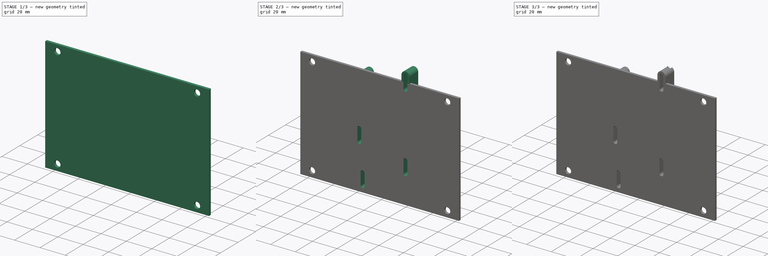
[diagram: build sequence overview — one tinted view per stage of 3, left to right]
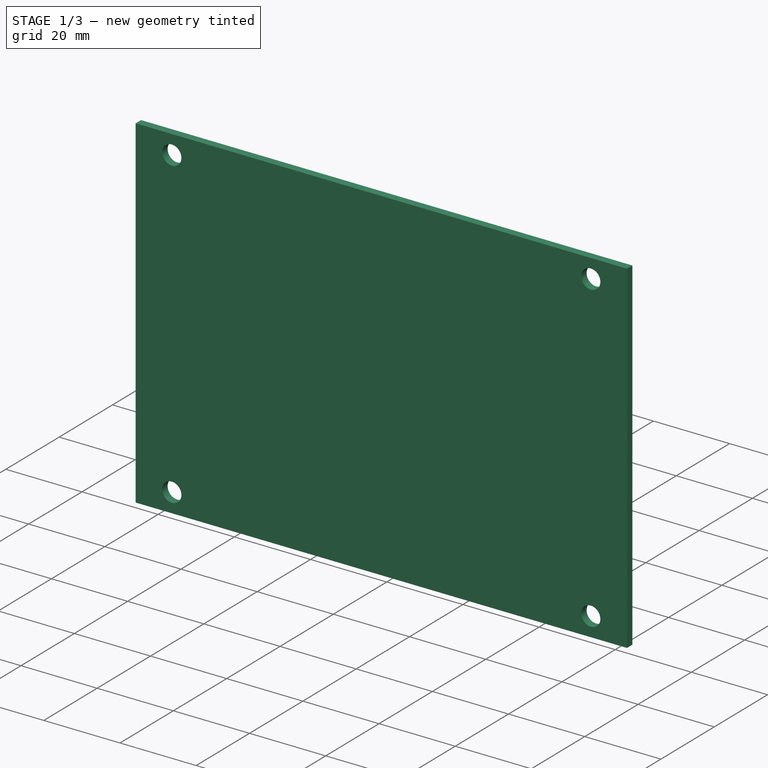
[diagram: stage 1 of 3 — iso view after this stage's code; geometry added in this stage tinted green]
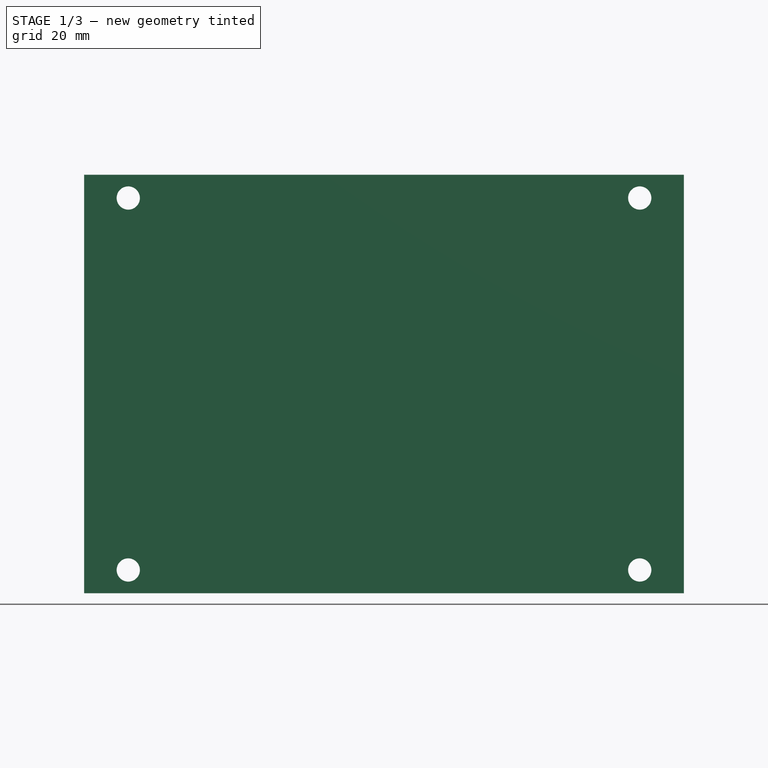
[diagram: stage 1 of 3 — front view after this stage's code; geometry added in this stage tinted green]
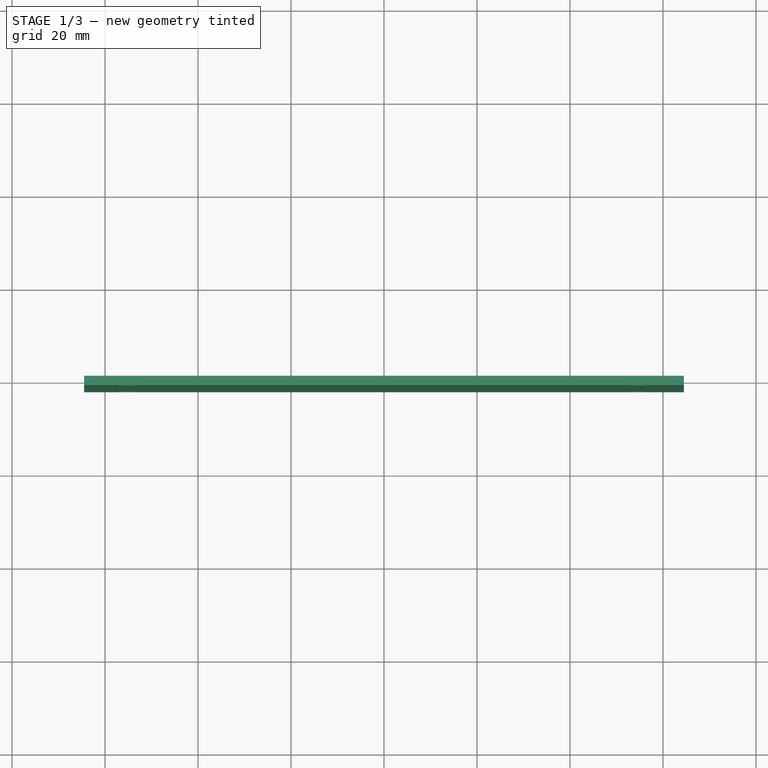
[diagram: stage 1 of 3 — top view after this stage's code; geometry added in this stage tinted green]
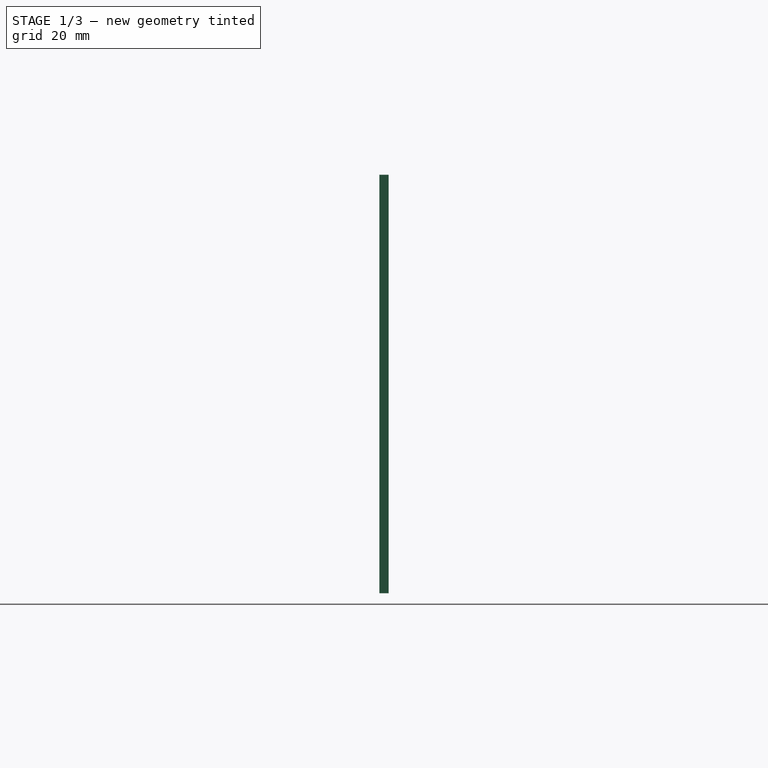
[diagram: stage 1 of 3 — right view after this stage's code; geometry added in this stage tinted green]
FCSTD DOCUMENT  (FreeCAD 0.20R29177 (Git))
Label: MK5Kit-Ender3BoardMount SideAccess
License: All rights reserved
LicenseURL: http://en.wikipedia.org/wiki/All_rights_reserved
objects: Sketcher::SketchObject×6, PartDesign::Pocket×5, PartDesign::Pad×2, PartDesign::Body×1
note: 21 computed .brp shape members not serialized (recipe doc carries the construction recipe); baked Part::Feature solids carry a one-line shape summary decoded from their .brp

FEATURE [Sketcher::SketchObject] Sketch
  FullyConstrained = true
  MapMode = 5
  Placement = pos=(0,0,0) rot=(1,0,0;1.5708rad)
  Support = -> [XZ_Plane]
  sketch-geometry (5):
    g0: LineSegment StartX=64.5 StartY=-45 StartZ=0 EndX=64.5 EndY=45 EndZ=0
    g1: LineSegment StartX=64.5 StartY=45 StartZ=0 EndX=-64.5 EndY=45 EndZ=0
    g2: LineSegment StartX=-64.5 StartY=45 StartZ=0 EndX=-64.5 EndY=-45 EndZ=0
    g3: LineSegment StartX=-64.5 StartY=-45 StartZ=0 EndX=64.5 EndY=-45 EndZ=0
    g4: GeomPoint X=0 Y=0 Z=0
  constraints (12):
    c: Coincident(g0,g1)
    c: Coincident(g1,g2)
    c: Coincident(g2,g3)
    c: Coincident(g3,g0)
    c: Horizontal(g1)
    c: Horizontal(g3)
    c: Vertical(g0)
    c: Vertical(g2)
    c: Symmetric(g1,g0,g4)
    c: Coincident(g4,g-1)
    c: DistanceX(g1,g1) = 129
    c: DistanceY(g2,g2) = 90
FEATURE [PartDesign::Pad] Pad
  Direction = (0,-1,2e-16)
  Length = 2
  Length2 = 10
  Placement = pos=(0,0,0) rot=(1,0,0;1.5708rad)
  Profile = -> Sketch
  ReferenceAxis = -> Sketch [N_Axis]
  Type = 0
FEATURE [Sketcher::SketchObject] Sketch001
  FullyConstrained = false
  MapMode = 5
  Placement = pos=(0,0,0) rot=(1,0,0;1.5708rad)
  Support = -> [XZ_Plane]
  sketch-geometry (4):
    g0: Circle CenterX=55 CenterY=40 CenterZ=0 NormalX=0 NormalY=0 NormalZ=1 AngleXU=0 Radius=2.5
    g1: Circle CenterX=-55 CenterY=40 CenterZ=0 NormalX=0 NormalY=0 NormalZ=1 AngleXU=0 Radius=2.5
    g2: Circle CenterX=55 CenterY=-40 CenterZ=0 NormalX=0 NormalY=0 NormalZ=1 AngleXU=0 Radius=2.5
    g3: Circle CenterX=-55 CenterY=-40 CenterZ=0 NormalX=0 NormalY=0 NormalZ=1 AngleXU=0 Radius=2.5
  constraints (6):
    c: Diameter(g0) = 5
    c: DistanceX(g-1,g0) = 55
    c: DistanceY(g-1,g0) = 40
    c: Diameter(g1) = 5
    c: Diameter(g2) = 5
    c: Diameter(g3) = 5
FEATURE [PartDesign::Pocket] Pocket
  BaseFeature = -> Pad
  Direction = (0,1,-2e-16)
  Length = 11
  Length2 = 2
  Placement = pos=(0,0,0) rot=(1,0,0;1.5708rad)
  Profile = -> Sketch001
  ReferenceAxis = -> Sketch001 [N_Axis]
  Reversed = true
  Type = 1
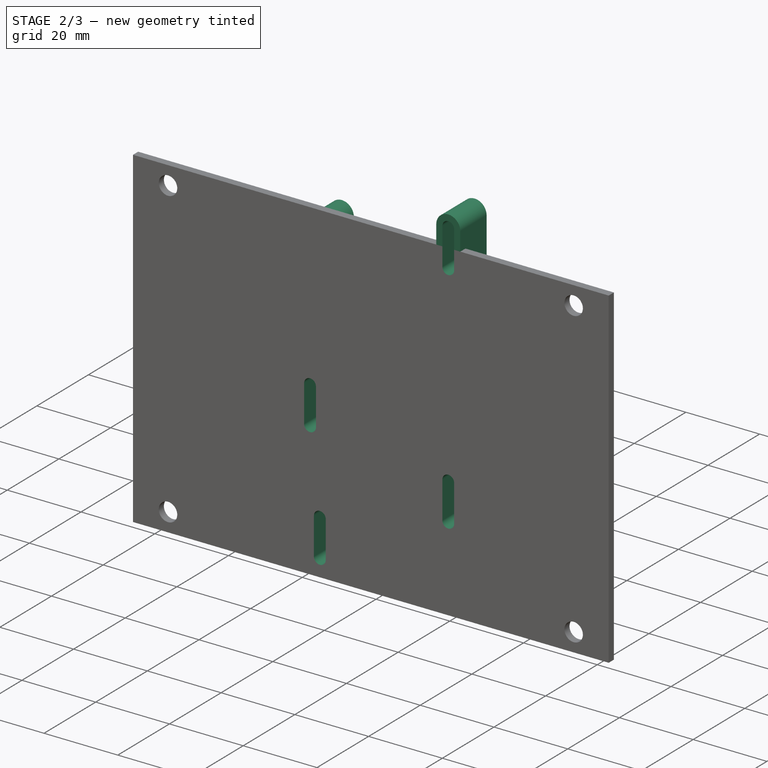
[diagram: stage 2 of 3 — iso view after this stage's code; geometry added in this stage tinted green]
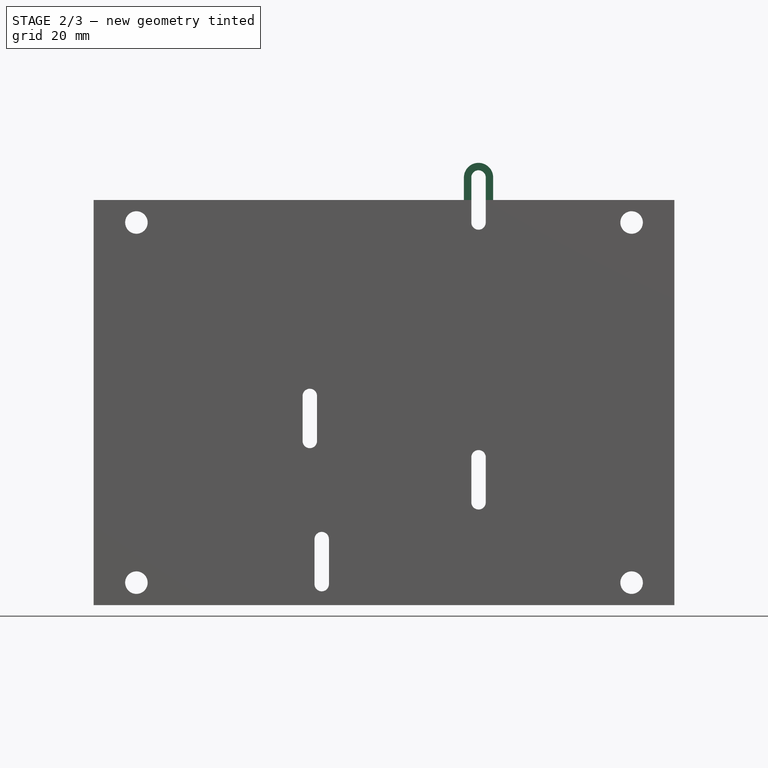
[diagram: stage 2 of 3 — front view after this stage's code; geometry added in this stage tinted green]
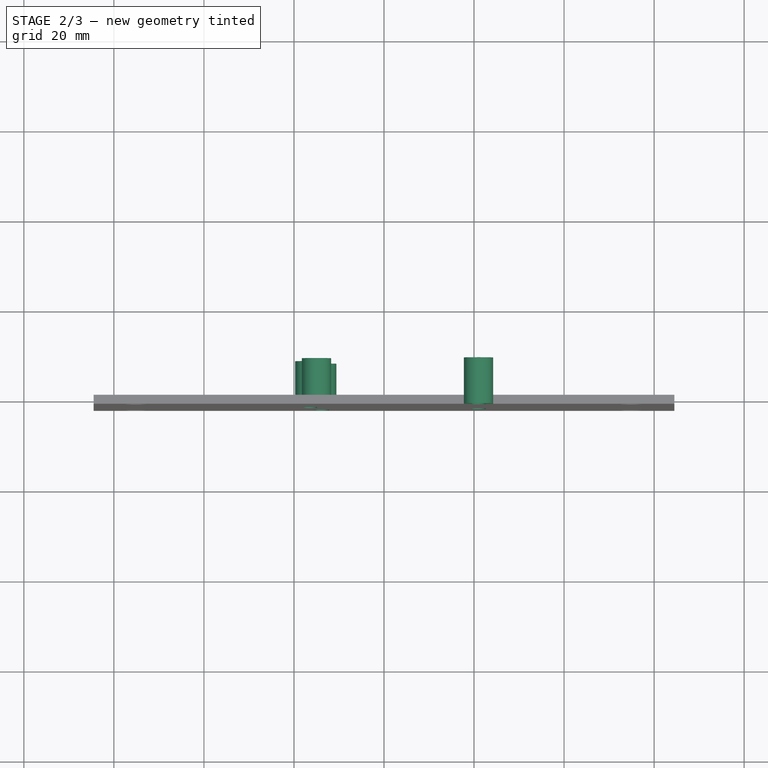
[diagram: stage 2 of 3 — top view after this stage's code; geometry added in this stage tinted green]
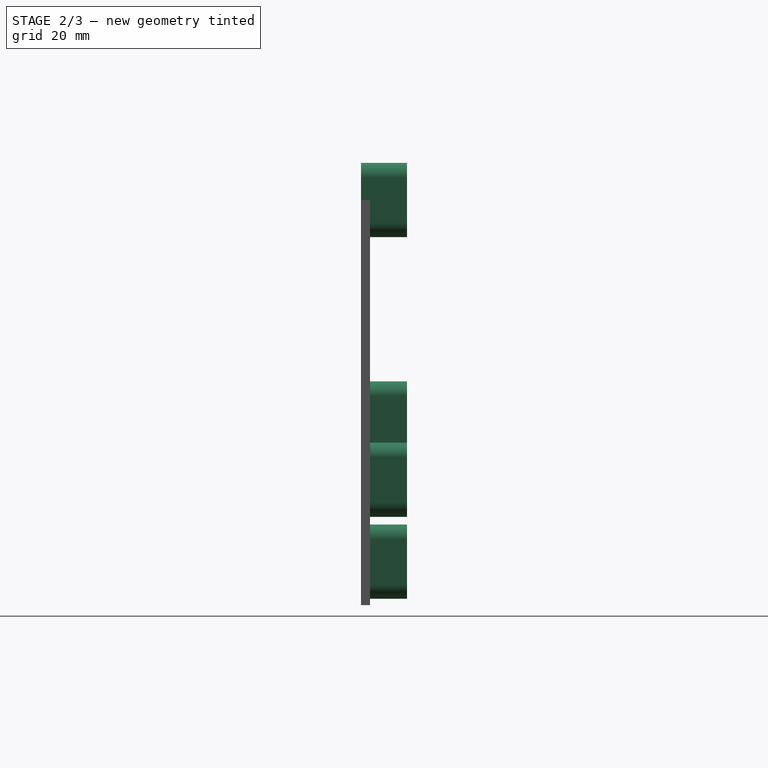
[diagram: stage 2 of 3 — right view after this stage's code; geometry added in this stage tinted green]
FEATURE [Sketcher::SketchObject] Sketch002
  ExternalGeometry = -> [Pocket]
  FullyConstrained = false
  MapMode = 5
  Placement = pos=(0,0,0) rot=(1,0,0;1.5708rad)
  Support = -> [XZ_Plane]
  sketch-geometry (4):
    g0: Circle CenterX=55 CenterY=40 CenterZ=0 NormalX=0 NormalY=0 NormalZ=1 AngleXU=0 Radius=4.375
    g1: Circle CenterX=-55 CenterY=40 CenterZ=0 NormalX=0 NormalY=0 NormalZ=1 AngleXU=0 Radius=4.375
    g2: Circle CenterX=55 CenterY=-40 CenterZ=0 NormalX=0 NormalY=0 NormalZ=1 AngleXU=0 Radius=4.375
    g3: Circle CenterX=-55 CenterY=-40 CenterZ=0 NormalX=0 NormalY=0 NormalZ=1 AngleXU=0 Radius=4.375
  constraints (5):
    c: Coincident(g0,g-3)
    c: Diameter(g0) = 8.75
    c: Diameter(g1) = 8.75
    c: Diameter(g2) = 8.75
    c: Diameter(g3) = 8.75
FEATURE [PartDesign::Pocket] Pocket001
  BaseFeature = -> Pocket
  Direction = (0,1,-2e-16)
  Length = 0.02
  Length2 = 5
  Placement = pos=(0,0,0) rot=(1,0,0;1.5708rad)
  Profile = -> Sketch002
  ReferenceAxis = -> Sketch002 [N_Axis]
  Reversed = true
  Type = 0
FEATURE [Sketcher::SketchObject] Sketch003
  ExternalGeometry = -> [Sketch001,Pocket001]
  FullyConstrained = false
  MapMode = 5
  Placement = pos=(0,0,0) rot=(1,0,0;1.5708rad)
  Support = -> [XZ_Plane]
  sketch-geometry (18):
    g0: ArcOfCircle CenterX=21 CenterY=50 CenterZ=0 NormalX=0 NormalY=0 NormalZ=1 AngleXU=0 Radius=3.25 StartAngle=1.94e-14 EndAngle=3.14159
    g1: ArcOfCircle CenterX=21 CenterY=40 CenterZ=0 NormalX=0 NormalY=0 NormalZ=1 AngleXU=0 Radius=3.25 StartAngle=3.14159 EndAngle=6.28319
    g2: LineSegment StartX=17.75 StartY=50 StartZ=0 EndX=17.75 EndY=40 EndZ=0
    g3: LineSegment StartX=24.25 StartY=40 StartZ=0 EndX=24.25 EndY=50 EndZ=0
    g4: ArcOfCircle CenterX=-16.48 CenterY=1.47 CenterZ=0 NormalX=0 NormalY=0 NormalZ=1 AngleXU=0 Radius=3.25 StartAngle=0 EndAngle=3.14159
    g5: ArcOfCircle CenterX=-16.48 CenterY=-8.53 CenterZ=0 NormalX=0 NormalY=0 NormalZ=1 AngleXU=0 Radius=3.25 StartAngle=3.14159 EndAngle=6.28319
    g6: LineSegment StartX=-19.73 StartY=1.47 StartZ=0 EndX=-19.73 EndY=-8.53 EndZ=0
    g7: LineSegment StartX=-13.23 StartY=-8.53 StartZ=0 EndX=-13.23 EndY=1.47 EndZ=0
    g8: ArcOfCircle CenterX=-13.83 CenterY=-30.33 CenterZ=0 NormalX=0 NormalY=0 NormalZ=1 AngleXU=0 Radius=3.25 StartAngle=4e-16 EndAngle=3.14159
    g9: ArcOfCircle CenterX=-13.83 CenterY=-40.33 CenterZ=0 NormalX=0 NormalY=0 NormalZ=1 AngleXU=0 Radius=3.25 StartAngle=3.14159 EndAngle=6.28319
    g10: LineSegment StartX=-17.08 StartY=-30.33 StartZ=0 EndX=-17.08 EndY=-40.33 EndZ=0
    g11: LineSegment StartX=-10.58 StartY=-40.33 StartZ=0 EndX=-10.58 EndY=-30.33 EndZ=0
    g12: ArcOfCircle CenterX=21 CenterY=-12.15 CenterZ=0 NormalX=0 NormalY=0 NormalZ=1 AngleXU=0 Radius=3.25 StartAngle=0 EndAngle=3.14159
    g13: ArcOfCircle CenterX=21 CenterY=-22.15 CenterZ=0 NormalX=0 NormalY=0 NormalZ=1 AngleXU=0 Radius=3.25 StartAngle=3.14159 EndAngle=6.28319
    g14: LineSegment StartX=17.75 StartY=-12.15 StartZ=0 EndX=17.75 EndY=-22.15 EndZ=0
    g15: LineSegment StartX=24.25 StartY=-22.15 StartZ=0 EndX=24.25 EndY=-12.15 EndZ=0
    g16: Circle CenterX=-15 CenterY=40 CenterZ=0 NormalX=0 NormalY=0 NormalZ=1 AngleXU=0 Radius=3.25
    g17: LineSegment StartX=21 StartY=40 StartZ=0 EndX=-29.3566 EndY=40 EndZ=0
  constraints (46):
    c: Tangent(g0,g2) = -1.5708
    c: Tangent(g2,g1) = -1.5708
    c: Tangent(g1,g3) = -1.5708
    c: Tangent(g3,g0) = -1.5708
    c: Equal(g0,g1)
    c: Tangent(g4,g6) = -1.5708
    c: Tangent(g6,g5) = -1.5708
    c: Tangent(g5,g7) = -1.5708
    c: Tangent(g7,g4) = -1.5708
    c: Equal(g4,g5)
    c: Tangent(g8,g10) = -1.5708
    c: Tangent(g10,g9) = -1.5708
    c: Tangent(g9,g11) = -1.5708
    c: Tangent(g11,g8) = -1.5708
    c: Equal(g8,g9)
    c: Tangent(g12,g14) = -1.5708
    c: Tangent(g14,g13) = -1.5708
    c: Tangent(g13,g15) = -1.5708
    c: Tangent(g15,g12) = -1.5708
    c: Equal(g12,g13)
    c: Diameter(g0) = 6.5
    c: Equal(g0,g12)
    c: Equal(g12,g16)
    c: Equal(g16,g8)
    c: Equal(g8,g4)
    c: Equal(g6,g2)
    c: Equal(g2,g14)
    c: Equal(g14,g10)
    c: PointOnObject(g12,g2)
    c: Vertical(g6)
    c: Vertical(g10)
    c: Vertical(g2)
    c: Vertical(g14)
    c: DistanceY(g2,g2) = 10
    c: DistanceX(g0,g-3) = 34
    c: DistanceY(g12,g0) = 62.15
    c: DistanceX(g16,g1) = 36
    c: Coincident(g17,g1)
    c: Horizontal(g17)
    c: PointOnObject(g16,g17)
    c: DistanceY(g4,g0) = 48.53
    c: DistanceY(g8,g0) = 80.33
    c: DistanceX(g8,g0) = 34.83
    c: DistanceX(g4,g0) = 37.48
    c: DistanceY(g-4,g-4) = 0
    c: DistanceY(g0,g-4) = -5
FEATURE [PartDesign::Pad] Pad001
  BaseFeature = -> Pocket001
  Direction = (0,-1,2e-16)
  Length = 8.2
  Length2 = 2
  Placement = pos=(0,0,0) rot=(1,0,0;1.5708rad)
  Profile = -> Sketch003
  ReferenceAxis = -> Sketch003 [N_Axis]
  Reversed = true
  Type = 4
FEATURE [Sketcher::SketchObject] Sketch004
  ExternalGeometry = -> [Sketch003]
  FullyConstrained = true
  MapMode = 5
  Placement = pos=(0,0,0) rot=(1,0,0;1.5708rad)
  Support = -> [XZ_Plane]
  sketch-geometry (16):
    g0: ArcOfCircle CenterX=21 CenterY=50 CenterZ=0 NormalX=0 NormalY=0 NormalZ=1 AngleXU=0 Radius=1.6 StartAngle=4e-16 EndAngle=3.14159
    g1: ArcOfCircle CenterX=21 CenterY=40 CenterZ=0 NormalX=0 NormalY=0 NormalZ=1 AngleXU=0 Radius=1.6 StartAngle=3.14159 EndAngle=6.28319
    g2: LineSegment StartX=19.4 StartY=50 StartZ=0 EndX=19.4 EndY=40 EndZ=0
    g3: LineSegment StartX=22.6 StartY=40 StartZ=0 EndX=22.6 EndY=50 EndZ=0
    g4: ArcOfCircle CenterX=-16.48 CenterY=1.47 CenterZ=0 NormalX=0 NormalY=0 NormalZ=1 AngleXU=0 Radius=1.6 StartAngle=0 EndAngle=3.14159
    g5: ArcOfCircle CenterX=-16.48 CenterY=-8.53 CenterZ=0 NormalX=0 NormalY=0 NormalZ=1 AngleXU=0 Radius=1.6 StartAngle=3.14159 EndAngle=6.28319
    g6: LineSegment StartX=-18.08 StartY=1.47 StartZ=0 EndX=-18.08 EndY=-8.53 EndZ=0
    g7: LineSegment StartX=-14.88 StartY=-8.53 StartZ=0 EndX=-14.88 EndY=1.47 EndZ=0
    g8: ArcOfCircle CenterX=-13.83 CenterY=-30.33 CenterZ=0 NormalX=0 NormalY=0 NormalZ=1 AngleXU=0 Radius=1.6 StartAngle=6e-16 EndAngle=3.14159
    g9: ArcOfCircle CenterX=-13.83 CenterY=-40.33 CenterZ=0 NormalX=0 NormalY=0 NormalZ=1 AngleXU=0 Radius=1.6 StartAngle=3.14159 EndAngle=6.28319
    g10: LineSegment StartX=-15.43 StartY=-30.33 StartZ=0 EndX=-15.43 EndY=-40.33 EndZ=0
    g11: LineSegment StartX=-12.23 StartY=-40.33 StartZ=0 EndX=-12.23 EndY=-30.33 EndZ=0
    g12: ArcOfCircle CenterX=21 CenterY=-12.15 CenterZ=0 NormalX=0 NormalY=0 NormalZ=1 AngleXU=0 Radius=1.6 StartAngle=-9e-16 EndAngle=3.14159
    g13: ArcOfCircle CenterX=21 CenterY=-22.15 CenterZ=0 NormalX=0 NormalY=0 NormalZ=1 AngleXU=0 Radius=1.6 StartAngle=3.14159 EndAngle=6.28319
    g14: LineSegment StartX=19.4 StartY=-12.15 StartZ=0 EndX=19.4 EndY=-22.15 EndZ=0
    g15: LineSegment StartX=22.6 StartY=-22.15 StartZ=0 EndX=22.6 EndY=-12.15 EndZ=0
  constraints (32):
    c: Tangent(g0,g2) = -1.5708
    c: Tangent(g2,g1) = -1.5708
    c: Tangent(g1,g3) = -1.5708
    c: Tangent(g3,g0) = -1.5708
    c: Equal(g0,g1)
    c: Coincident(g0,g-3)
    c: Coincident(g1,g-4)
    c: Tangent(g4,g6) = -1.5708
    c: Tangent(g6,g5) = -1.5708
    c: Tangent(g5,g7) = -1.5708
    c: Tangent(g7,g4) = -1.5708
    c: Equal(g4,g5)
    c: Coincident(g4,g-5)
    c: Coincident(g5,g-6)
    c: Tangent(g8,g10) = -1.5708
    c: Tangent(g10,g9) = -1.5708
    c: Tangent(g9,g11) = -1.5708
    c: Tangent(g11,g8) = -1.5708
    c: Equal(g8,g9)
    c: Coincident(g9,g-10)
    c: Tangent(g12,g14) = -1.5708
    c: Tangent(g14,g13) = -1.5708
    c: Tangent(g13,g15) = -1.5708
    c: Tangent(g15,g12) = -1.5708
    c: Equal(g12,g13)
    c: Coincident(g12,g-7)
    c: Coincident(g13,g-8)
    c: Diameter(g0) = 3.2
    c: Equal(g0,g4)
    c: Equal(g4,g12)
    c: Equal(g12,g8)
    c: Coincident(g8,g-9)
FEATURE [PartDesign::Pocket] Pocket002
  BaseFeature = -> Pad001
  Direction = (0,1,-2e-16)
  Length = 10
  Length2 = 5
  Placement = pos=(0,0,0) rot=(1,0,0;1.5708rad)
  Profile = -> Sketch004
  ReferenceAxis = -> Sketch004 [N_Axis]
  Type = 4
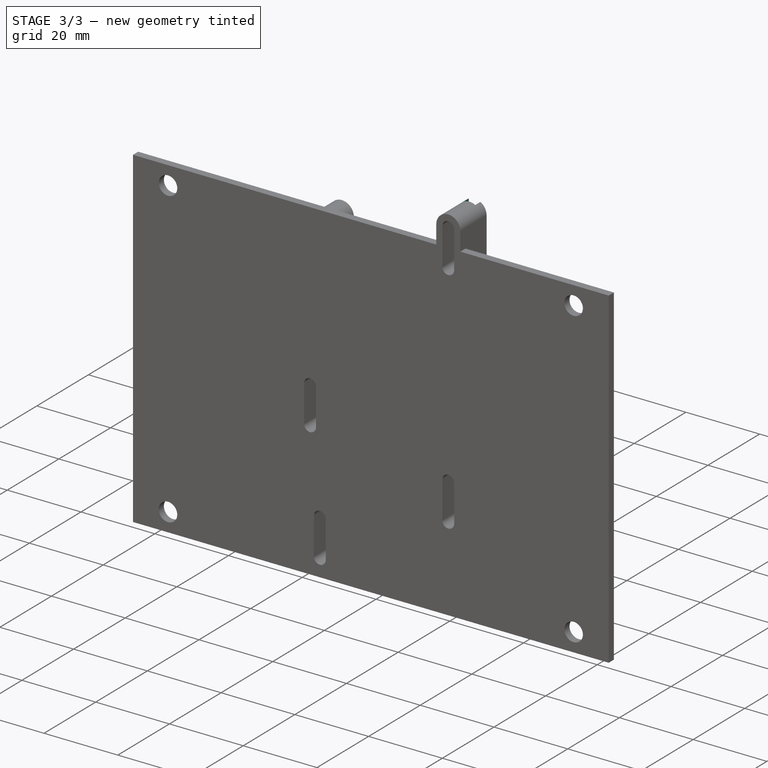
[diagram: stage 3 of 3 — iso view after this stage's code; geometry added in this stage tinted green]
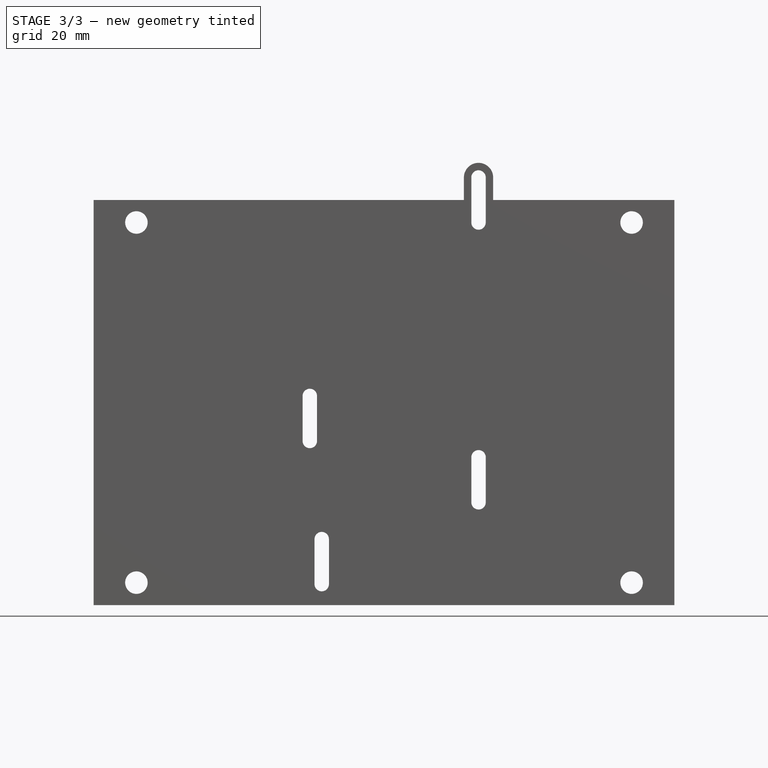
[diagram: stage 3 of 3 — front view after this stage's code; geometry added in this stage tinted green]
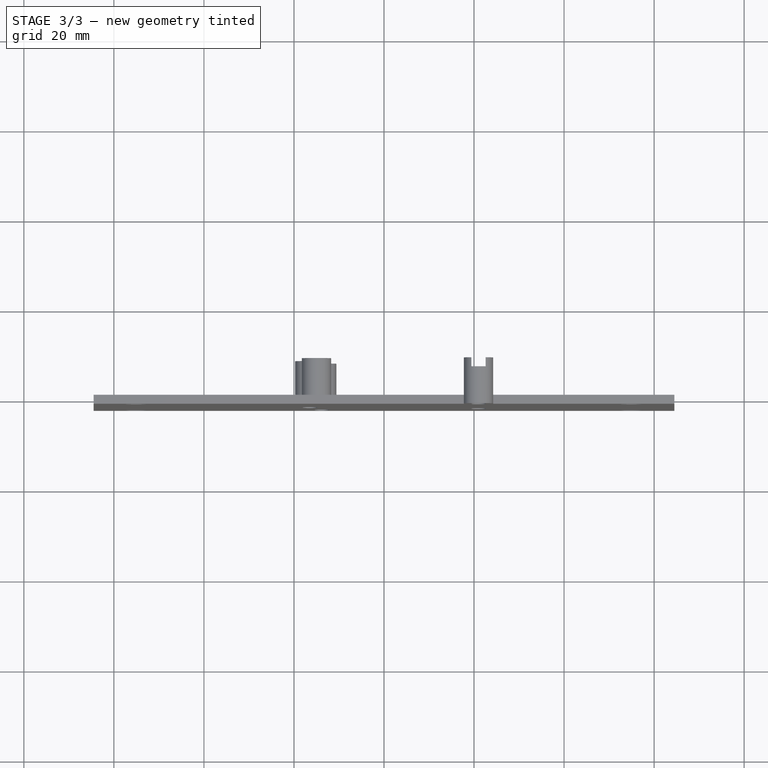
[diagram: stage 3 of 3 — top view after this stage's code; geometry added in this stage tinted green]
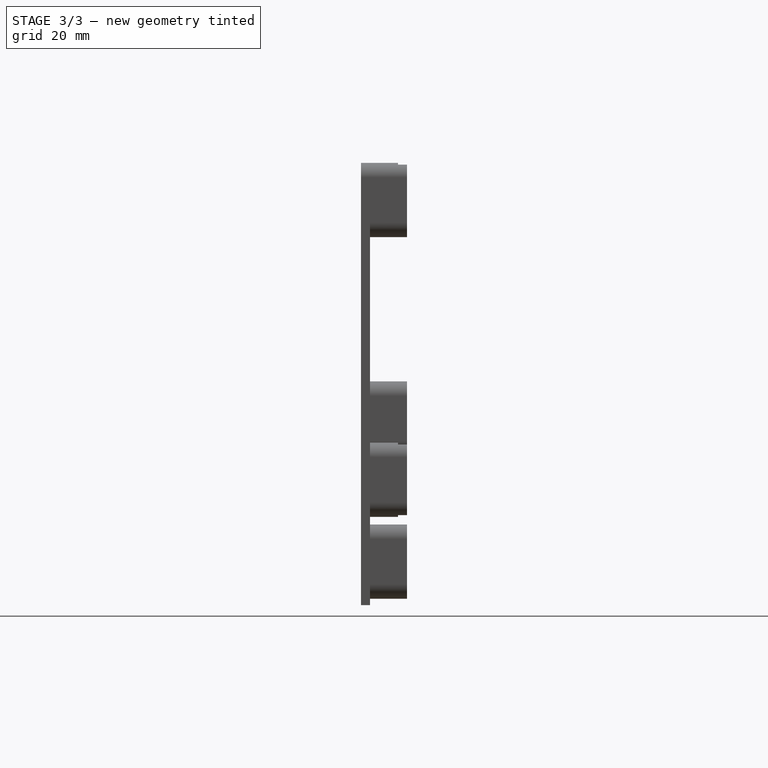
[diagram: stage 3 of 3 — right view after this stage's code; geometry added in this stage tinted green]
FEATURE [Sketcher::SketchObject] Sketch005
  ExternalGeometry = -> [Pocket002]
  FullyConstrained = false
  MapMode = 5
  Support = -> [XY_Plane]
  sketch-geometry (4):
    g0: LineSegment StartX=19.4 StartY=8.2 StartZ=0 EndX=22.5663 EndY=8.2 EndZ=0
    g1: LineSegment StartX=22.5663 StartY=8.2 StartZ=0 EndX=22.5663 EndY=6.2 EndZ=0
    g2: LineSegment StartX=22.5663 StartY=6.2 StartZ=0 EndX=19.4 EndY=6.2 EndZ=0
    g3: LineSegment StartX=19.4 StartY=6.2 StartZ=0 EndX=19.4 EndY=8.2 EndZ=0
  constraints (10):
    c: Coincident(g0,g1)
    c: Coincident(g1,g2)
    c: Coincident(g2,g3)
    c: Coincident(g3,g0)
    c: Horizontal(g0)
    c: Horizontal(g2)
    c: Vertical(g1)
    c: Vertical(g3)
    c: Coincident(g0,g-3)
    c: DistanceY(g3,g3) = 2
FEATURE [PartDesign::Pocket] Pocket003
  BaseFeature = -> Pocket002
  Direction = (0,0,-1)
  Length = 5
  Length2 = 5
  Placement = pos=(0,0,0) rot=(1,0,0;1.5708rad)
  Profile = -> Sketch005
  ReferenceAxis = -> Sketch005 [N_Axis]
  Type = 1
FEATURE [PartDesign::Pocket] Pocket004
  BaseFeature = -> Pocket003
  Direction = (0,0,-1)
  Length = 5
  Length2 = 5
  Placement = pos=(0,0,0) rot=(1,0,0;1.5708rad)
  Profile = -> Sketch005
  ReferenceAxis = -> Sketch005 [N_Axis]
  Reversed = true
  Type = 1
FEATURE [PartDesign::Body] Body
  Group = -> [Sketch,Pad,Sketch001,Pocket,Sketch002,Pocket001,Sketch003,Pad001,Sketch004,Pocket002,Sketch005,Pocket003,Pocket004]
  Origin = -> Origin
  Tip = -> Pocket004
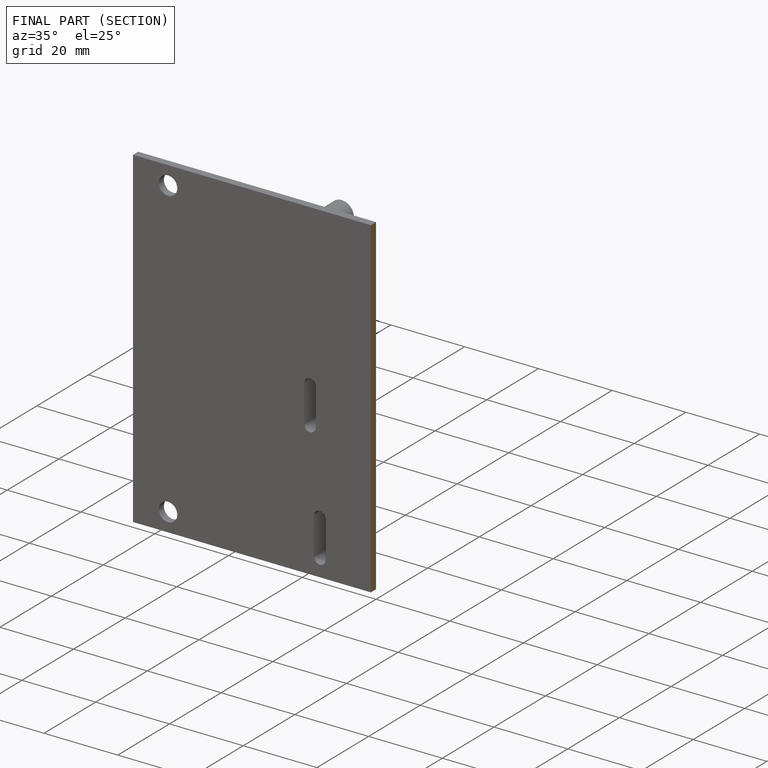
[diagram: finished part — half-section view (interior)]
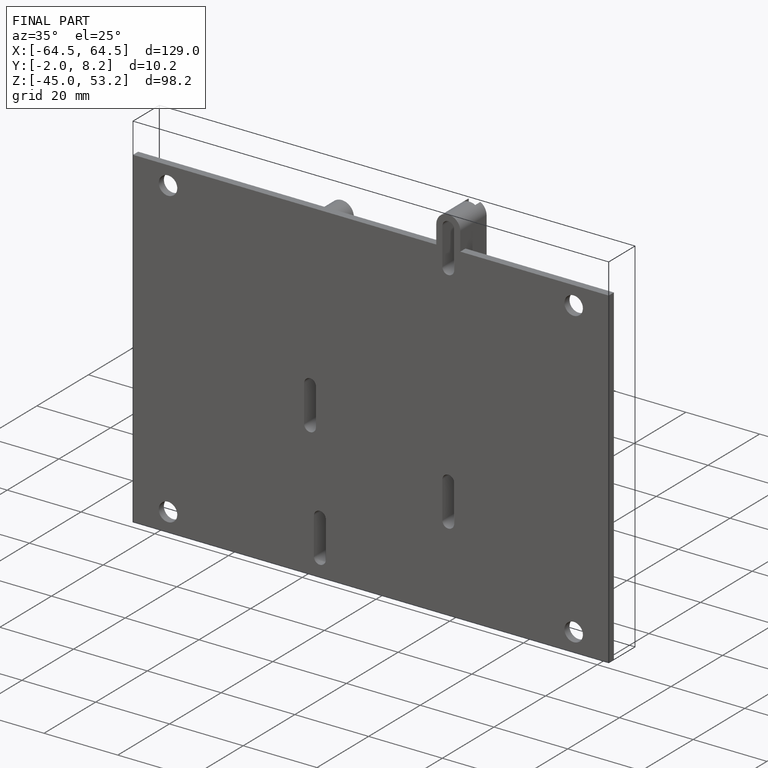
[diagram: finished part — iso view with bounding-box wireframe]
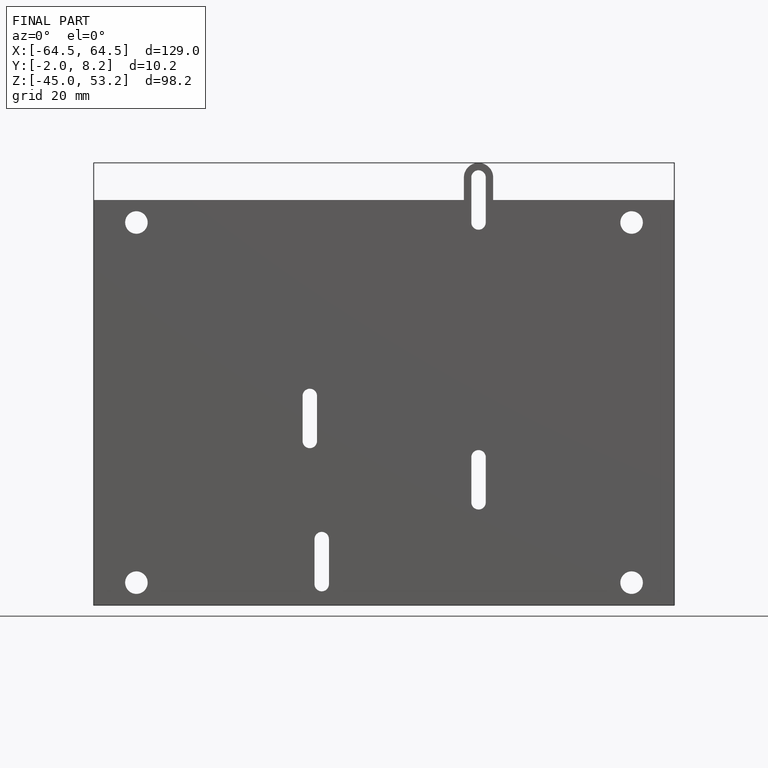
[diagram: finished part — front view with bounding-box wireframe]
